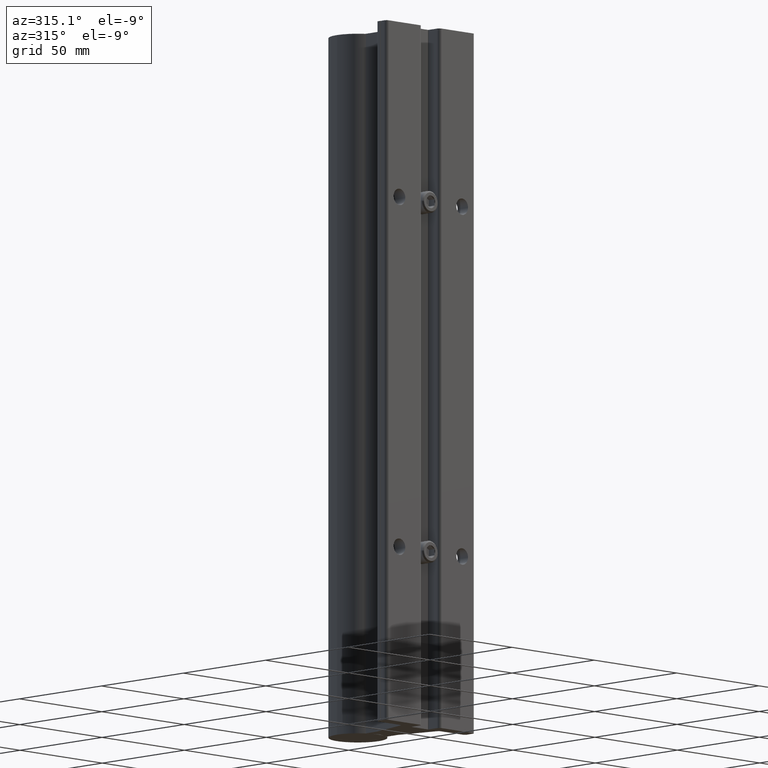
[diagram: clean part render]
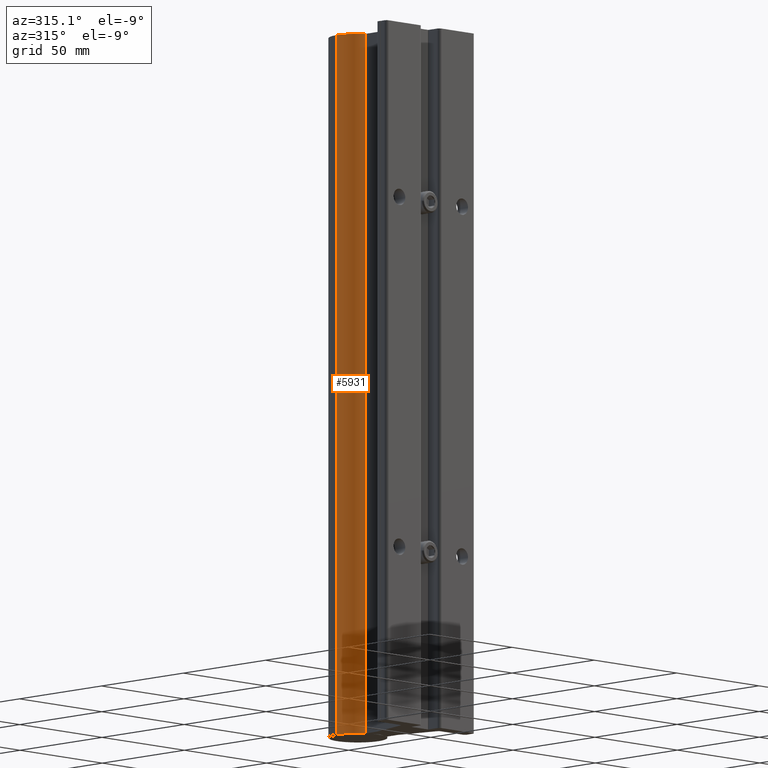
[diagram: same view with one face highlighted and labeled with its STEP entity id]
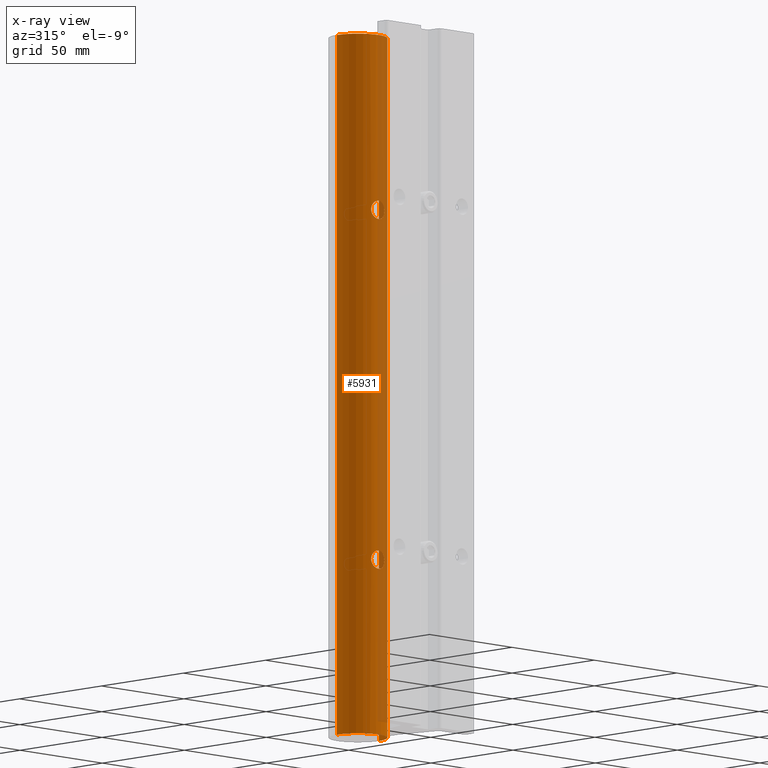
[diagram: x-ray of the same camera — body ghosted, the highlighted face saturated]
A machine part, auxiliary view. The second image highlights one B-rep face of the part: STEP entity #5931.
The next image is the same camera in x-ray: the body ghosted, the highlighted face saturated — about 19% of this face is hidden behind the body in this view.
In plain terms, the highlighted cylindrical surface (edge-blend (fillet) strip) has radius 12.7 mm, axis along (0, 0, 1).
Its self-contained STEP definition (entity closure, byte-faithful):
#21 = VERTEX_POINT ( 'NONE', #3940 ) ;
#32 = AXIS2_PLACEMENT_3D ( 'NONE', #1918, #3806, #4218 ) ;
#53 = CARTESIAN_POINT ( 'NONE',  ( 0.1178679316663036047, 1.264035795095121539, -3.103451840684775753 ) ) ;
#75 = CARTESIAN_POINT ( 'NONE',  ( 0.09554229024632142353, 1.259137792854418736, -9.124369988947355736 ) ) ;
#100 = CARTESIAN_POINT ( 'NONE',  ( 0.1243211416543388154, 1.265666113831307893, -9.095614294644716935 ) ) ;
#103 = CARTESIAN_POINT ( 'NONE',  ( 0.01040809537437401879, 1.250000000000000000, -3.156499999999999417 ) ) ;
#123 = EDGE_CURVE ( 'NONE', #2184, #2625, #5682, .T. ) ;
#139 = CARTESIAN_POINT ( 'NONE',  ( 0.09554229024632135414, 1.259137792854418958, -3.124369988947353960 ) ) ;
#180 = CARTESIAN_POINT ( 'NONE',  ( 0.1484607547724582644, 1.272531118639973702, -2.949422464750743433 ) ) ;
#182 = CARTESIAN_POINT ( 'NONE',  ( -0.01025724752596621561, 1.249999999999999778, -2.843499999999999694 ) ) ;
#242 = EDGE_CURVE ( 'NONE', #2625, #2184, #4504, .T. ) ;
#245 = CARTESIAN_POINT ( 'NONE',  ( -0.05070669661409946821, 1.252486482524820977, -3.148412155886937569 ) ) ;
#273 = CARTESIAN_POINT ( 'NONE',  ( -0.05070669661409964168, 1.252486482524820754, -9.148412155886937569 ) ) ;
#280 = CARTESIAN_POINT ( 'NONE',  ( -0.06949739479790265073, 1.254762348453770437, -2.859406111006373319 ) ) ;
#281 = CARTESIAN_POINT ( 'NONE',  ( 2.101067853136701108E-15, 1.249999999999999778, -2.843499999999999694 ) ) ;
#295 = CARTESIAN_POINT ( 'NONE',  ( -0.09556328476573595909, 1.259141713243884686, -9.124354827726028461 ) ) ;
#303 = CARTESIAN_POINT ( 'NONE',  ( -0.05063820119978774958, 1.252480159217775446, -2.851567179891719039 ) ) ;
#392 = CARTESIAN_POINT ( 'NONE',  ( -0.06963320848488399606, 1.254780770336873408, -9.140529546262069260 ) ) ;
#407 = DIRECTION ( 'NONE',  ( 0.000000000000000000, 0.000000000000000000, 1.000000000000000000 ) ) ;
#434 = ORIENTED_EDGE ( 'NONE', *, *, #3449, .T. ) ;
#463 = CARTESIAN_POINT ( 'NONE',  ( 0.05065284700690678849, 1.252481518235631697, -8.851571626508986768 ) ) ;
#486 = CARTESIAN_POINT ( 'NONE',  ( 0.06964398895624222818, 1.254782635874227781, -9.140522836123970762 ) ) ;
#580 = CARTESIAN_POINT ( 'NONE',  ( -2.094411209430302873E-16, 1.250000000000000000, -9.156499999999999417 ) ) ;
#659 = CARTESIAN_POINT ( 'NONE',  ( -0.1178406157585082242, 1.264028440204093995, -2.896511160095683213 ) ) ;
#681 = CARTESIAN_POINT ( 'NONE',  ( 0.1564999516228308130, 1.275123421148132152, -2.989685541178743744 ) ) ;
#713 = CARTESIAN_POINT ( 'NONE',  ( -0.06963320848488384340, 1.254780770336873186, -3.140529546262071037 ) ) ;
#717 = EDGE_CURVE ( 'NONE', #3644, #3308, #1816, .T. ) ;
#734 = CARTESIAN_POINT ( 'NONE',  ( -0.1405791870913263575, 1.270151909297080550, -9.069522938698744596 ) ) ;
#747 = CARTESIAN_POINT ( 'NONE',  ( -0.07866204735017155725, 1.256151829709960754, -2.864323441777054224 ) ) ;
#767 = CARTESIAN_POINT ( 'NONE',  ( 2.101067853164528571E-15, 1.249999999999999778, -8.843499999999998806 ) ) ;
#825 = CARTESIAN_POINT ( 'NONE',  ( 0.1484198940517172105, 1.272518801255798415, -3.050674901167630182 ) ) ;
#845 = VERTEX_POINT ( 'NONE', #4101 ) ;
#964 = ORIENTED_EDGE ( 'NONE', *, *, #5464, .F. ) ;
#991 = CARTESIAN_POINT ( 'NONE',  ( 0.07868335296973141824, 1.256155164790862200, -8.864335404507160732 ) ) ;
#1102 = CARTESIAN_POINT ( 'NONE',  ( 0.01025452552329446029, 1.250000000000000000, -2.843499999999999694 ) ) ;
#1105 = CARTESIAN_POINT ( 'NONE',  ( -0.1357655045532588922, 1.268748703922866650, -3.078521736294910660 ) ) ;
#1117 = DIRECTION ( 'NONE',  ( 1.000000000000000000, 0.000000000000000000, 0.000000000000000000 ) ) ;
#1165 = CARTESIAN_POINT ( 'NONE',  ( 2.101067853136701108E-15, 1.249999999999999778, -2.843499999999999694 ) ) ;
#1170 = DIRECTION ( 'NONE',  ( 0.000000000000000000, 0.000000000000000000, 1.000000000000000000 ) ) ;
#1179 = DIRECTION ( 'NONE',  ( 0.000000000000000000, 0.000000000000000000, 1.000000000000000000 ) ) ;
#1199 = CARTESIAN_POINT ( 'NONE',  ( -0.09557294541033024837, 1.259144068898282232, -2.875655083537207002 ) ) ;
#1216 = CARTESIAN_POINT ( 'NONE',  ( -0.1484625484838919263, 1.272531726863998180, -8.949430081437837359 ) ) ;
#1250 = CARTESIAN_POINT ( 'NONE',  ( -0.1178737392740396434, 1.264037250430759096, -9.103444881357880547 ) ) ;
#1347 = CARTESIAN_POINT ( 'NONE',  ( -0.09557294541033013735, 1.259144068898282232, -8.875655083537205670 ) ) ;
#1440 = CARTESIAN_POINT ( 'NONE',  ( 0.1564999516228307852, 1.275123421148132596, -8.989685541178742412 ) ) ;
#1491 = CARTESIAN_POINT ( 'NONE',  ( 0.04076219009262815191, 1.251562410105868883, -9.151446191407679009 ) ) ;
#1496 = CARTESIAN_POINT ( 'NONE',  ( 0.05075370098592688756, 1.252491623421628786, -3.148394792719597657 ) ) ;
#1524 = CARTESIAN_POINT ( 'NONE',  ( 0.02055646357326389173, 1.250319155074914645, -8.844510654310177244 ) ) ;
#1549 = DIRECTION ( 'NONE',  ( 0.000000000000000000, 0.000000000000000000, 1.000000000000000000 ) ) ;
#1592 = CARTESIAN_POINT ( 'NONE',  ( 0.1244033045994822895, 1.265688150019278035, -2.904506835837624035 ) ) ;
#1597 = CARTESIAN_POINT ( 'NONE',  ( -0.1405791870913261077, 1.270151909297080550, -3.069522938698746373 ) ) ;
#1636 = CARTESIAN_POINT ( 'NONE',  ( 0.1178830997218137805, 1.264038663556757758, -2.896558514937383144 ) ) ;
#1640 = CARTESIAN_POINT ( 'NONE',  ( -0.09556328476573582031, 1.259141713243884686, -3.124354827726028017 ) ) ;
#1645 = LINE ( 'NONE', #2084, #3584 ) ;
#1654 = EDGE_CURVE ( 'NONE', #6015, #5841, #2093, .T. ) ;
#1672 = CARTESIAN_POINT ( 'NONE',  ( -0.1035399364845304288, 1.260782774289252561, -3.117790251898744813 ) ) ;
#1685 = CARTESIAN_POINT ( 'NONE',  ( -0.1034063837601280900, 1.260753755813636134, -8.882087021474569966 ) ) ;
#1777 = EDGE_LOOP ( 'NONE', ( #5992, #3867, #4335, #964 ) ) ;
#1783 = CARTESIAN_POINT ( 'NONE',  ( -2.094411209430302873E-16, 1.250000000000000000, -9.156499999999999417 ) ) ;
#1816 = B_SPLINE_CURVE_WITH_KNOTS ( 'NONE', 3,
 ( #3733, #1874, #1524, #2414, #463, #5112, #991, #2806, #2324, #2774, #5692, #4199, #4310, #4668, #2854, #1926, #1440, #5730, #4287, #5607, #6074, #3332, #4751, #100, #3274, #4696, #75, #1948, #486, #2344, #1491, #3362, #5236, #580 ),
 .UNSPECIFIED., .F., .F.,
 ( 4, 2, 2, 2, 2, 2, 2, 2, 2, 2, 2, 2, 2, 2, 2, 2, 4 ),
 ( 0.01250706719454411538, 0.01328855145386468109, 0.01407003571318524854, 0.01485151997250581425, 0.01563300423182637996, 0.01641448849114694741, 0.01719597275046751139, 0.01797745700978807884, 0.01875894126910864282, 0.01954042552842921027, 0.02032190978774977425, 0.02110339404707034516, 0.02188487830639090914, 0.02266636256571147312, 0.02344784682503204057, 0.02422933108435260802, 0.02501081534367317200 ),
 .UNSPECIFIED. ) ;
#1874 = CARTESIAN_POINT ( 'NONE',  ( 0.01025452552329443774, 1.250000000000000222, -8.843499999999998806 ) ) ;
#1899 = CARTESIAN_POINT ( 'NONE',  ( 0.04076219009262842252, 1.251562410105868883, -3.151446191407679898 ) ) ;
#1918 = CARTESIAN_POINT ( 'NONE',  ( 0.000000000000000000, 1.750000000000000000, -11.99999999999999822 ) ) ;
#1926 = CARTESIAN_POINT ( 'NONE',  ( 0.1554580701843658597, 1.274776625798299312, -8.979269538820252805 ) ) ;
#1948 = CARTESIAN_POINT ( 'NONE',  ( 0.07859642925546561631, 1.256141075875271351, -9.135715970631931526 ) ) ;
#1953 = CARTESIAN_POINT ( 'NONE',  ( 0.06964398895624185348, 1.254782635874228225, -3.140522836123970762 ) ) ;
#1984 = CARTESIAN_POINT ( 'NONE',  ( -8.196081754135579170E-17, 1.250000000000000000, -3.156499999999999417 ) ) ;
#2010 = ORIENTED_EDGE ( 'NONE', *, *, #123, .T. ) ;
#2052 = CARTESIAN_POINT ( 'NONE',  ( -0.1034063837601284508, 1.260753755813636134, -2.882087021474569521 ) ) ;
#2084 = CARTESIAN_POINT ( 'NONE',  ( 0.5000000000000000000, 1.750000000000000000, -11.99999999999999822 ) ) ;
#2093 = LINE ( 'NONE', #3444, #5810 ) ;
#2121 = CARTESIAN_POINT ( 'NONE',  ( -0.1484031328809074790, 1.272513656587303865, -3.050719394709512589 ) ) ;
#2141 = CARTESIAN_POINT ( 'NONE',  ( -0.1565048378191059575, 1.275125031439485079, -8.989792767501070259 ) ) ;
#2175 = CARTESIAN_POINT ( 'NONE',  ( 2.101067853136701108E-15, 1.249999999999999778, -2.843499999999999694 ) ) ;
#2184 = VERTEX_POINT ( 'NONE', #281 ) ;
#2194 = CARTESIAN_POINT ( 'NONE',  ( -0.07859880021001160177, 1.256141287737158052, -9.135715486144853514 ) ) ;
#2229 = CARTESIAN_POINT ( 'NONE',  ( 0.07868335296973177906, 1.256155164790861978, -2.864335404507161176 ) ) ;
#2230 = CARTESIAN_POINT ( 'NONE',  ( -0.07866204735017148786, 1.256151829709960754, -8.864323441777052892 ) ) ;
#2324 = CARTESIAN_POINT ( 'NONE',  ( 0.1034388360803587259, 1.260760536231932072, -8.882114575869943351 ) ) ;
#2344 = CARTESIAN_POINT ( 'NONE',  ( 0.05075370098592723450, 1.252491623421629230, -9.148394792719598101 ) ) ;
#2414 = CARTESIAN_POINT ( 'NONE',  ( 0.04086650447296577560, 1.251569018025717517, -8.848575320274898459 ) ) ;
#2457 = AXIS2_PLACEMENT_3D ( 'NONE', #3516, #1179, #1117 ) ;
#2514 = CARTESIAN_POINT ( 'NONE',  ( -0.02063932115101497697, 1.250323351658012339, -2.844524195707542003 ) ) ;
#2585 = CARTESIAN_POINT ( 'NONE',  ( -0.1514432164739248077, 1.273481935867222692, -9.040787736699337884 ) ) ;
#2598 = CARTESIAN_POINT ( 'NONE',  ( -0.01041085814125160269, 1.249999999999999778, -3.156499999999998973 ) ) ;
#2625 = VERTEX_POINT ( 'NONE', #2885 ) ;
#2628 = CARTESIAN_POINT ( 'NONE',  ( -0.02063512757121529345, 1.250324585779543529, -3.155471615359788373 ) ) ;
#2647 = CARTESIAN_POINT ( 'NONE',  ( -0.1514414893444177290, 1.273481421671772917, -8.959219246323204544 ) ) ;
#2759 = EDGE_LOOP ( 'NONE', ( #3908, #2010 ) ) ;
#2774 = CARTESIAN_POINT ( 'NONE',  ( 0.1178830997218135168, 1.264038663556757092, -8.896558514937384032 ) ) ;
#2806 = CARTESIAN_POINT ( 'NONE',  ( 0.09560078652235397267, 1.259149431177259748, -8.875676059742689361 ) ) ;
#2854 = CARTESIAN_POINT ( 'NONE',  ( 0.1514350073922274831, 1.273479375567842187, -8.959202915027070446 ) ) ;
#2885 = CARTESIAN_POINT ( 'NONE',  ( -8.196081754135579170E-17, 1.250000000000000000, -3.156499999999999417 ) ) ;
#2929 = CARTESIAN_POINT ( 'NONE',  ( 0.04086650447296554661, 1.251569018025717961, -2.848575320274898459 ) ) ;
#2931 = CARTESIAN_POINT ( 'NONE',  ( 0.1243211416543387599, 1.265666113831308115, -3.095614294644717379 ) ) ;
#2968 = CARTESIAN_POINT ( 'NONE',  ( 0.1356887000389168374, 1.268728011506206732, -2.921363473634938757 ) ) ;
#2973 = CARTESIAN_POINT ( 'NONE',  ( -0.1554870185490531131, 1.274786047844190362, -3.020554180687853751 ) ) ;
#3029 = CARTESIAN_POINT ( 'NONE',  ( 0.1034388360803589341, 1.260760536231932516, -2.882114575869943796 ) ) ;
#3045 = CIRCLE ( 'NONE', #2457, 0.5000000000000000000 ) ;
#3051 = EDGE_CURVE ( 'NONE', #845, #21, #1645, .T. ) ;
#3063 = CARTESIAN_POINT ( 'NONE',  ( 0.1405366595157273302, 1.270139003765712316, -2.930371484924218617 ) ) ;
#3070 = CARTESIAN_POINT ( 'NONE',  ( -0.04072955494209257177, 1.251560002186336895, -3.151454069033095440 ) ) ;
#3086 = CARTESIAN_POINT ( 'NONE',  ( -0.01025724752596621041, 1.249999999999999778, -8.843499999999997030 ) ) ;
#3103 = CARTESIAN_POINT ( 'NONE',  ( -0.1565048378191059575, 1.275125031439485523, -2.989792767501073367 ) ) ;
#3118 = FACE_BOUND ( 'NONE', #4170, .T. ) ;
#3121 = CARTESIAN_POINT ( 'NONE',  ( -0.1564951272782237335, 1.275121831240573211, -9.010355046800681222 ) ) ;
#3147 = CARTESIAN_POINT ( 'NONE',  ( -0.1405496522177391017, 1.270142859368248445, -8.930399423657641833 ) ) ;
#3163 = CARTESIAN_POINT ( 'NONE',  ( 2.101067853164528571E-15, 1.249999999999999778, -8.843499999999998806 ) ) ;
#3181 = CARTESIAN_POINT ( 'NONE',  ( -0.1178406157585078773, 1.264028440204093995, -8.896511160095682769 ) ) ;
#3274 = CARTESIAN_POINT ( 'NONE',  ( 0.1178679316663040350, 1.264035795095121539, -9.103451840684776641 ) ) ;
#3308 = VERTEX_POINT ( 'NONE', #4019 ) ;
#3332 = CARTESIAN_POINT ( 'NONE',  ( 0.1405814577952108346, 1.270152509823490261, -9.069521682105984084 ) ) ;
#3362 = CARTESIAN_POINT ( 'NONE',  ( 0.02064213769754179653, 1.250324616063695382, -9.155471563909012289 ) ) ;
#3431 = CARTESIAN_POINT ( 'NONE',  ( 0.06952565123151821513, 1.254766182063603130, -2.859419500684037274 ) ) ;
#3434 = CARTESIAN_POINT ( 'NONE',  ( -0.07859880021001150463, 1.256141287737158052, -3.135715486144853514 ) ) ;
#3444 = CARTESIAN_POINT ( 'NONE',  ( -0.5000000000000000000, 1.750000000000000000, -11.99999999999999822 ) ) ;
#3449 = EDGE_CURVE ( 'NONE', #3308, #3644, #4131, .T. ) ;
#3467 = CARTESIAN_POINT ( 'NONE',  ( -0.1405496522177394347, 1.270142859368248889, -2.930399423657641833 ) ) ;
#3502 = CARTESIAN_POINT ( 'NONE',  ( 0.1514646482530661031, 1.273488789680646605, -3.040701736055423599 ) ) ;
#3516 = CARTESIAN_POINT ( 'NONE',  ( 0.000000000000000000, 1.750000000000000000, -11.99999999999999822 ) ) ;
#3536 = CARTESIAN_POINT ( 'NONE',  ( -0.1178737392740400181, 1.264037250430759096, -3.103444881357880991 ) ) ;
#3550 = CARTESIAN_POINT ( 'NONE',  ( -0.05063820119978776346, 1.252480159217775668, -8.851567179891718595 ) ) ;
#3566 = CARTESIAN_POINT ( 'NONE',  ( -8.196081754135579170E-17, 1.250000000000000000, -3.156499999999999417 ) ) ;
#3584 = VECTOR ( 'NONE', #1170, 39.37007874015748143 ) ;
#3585 = CARTESIAN_POINT ( 'NONE',  ( -0.1554704722570755260, 1.274780669119014442, -8.979347474211012425 ) ) ;
#3615 = CARTESIAN_POINT ( 'NONE',  ( -0.1243271559051704334, 1.265667634256130603, -9.095606974650911170 ) ) ;
#3626 = DIRECTION ( 'NONE',  ( 1.000000000000000000, 0.000000000000000000, 0.000000000000000000 ) ) ;
#3644 = VERTEX_POINT ( 'NONE', #3163 ) ;
#3674 = CARTESIAN_POINT ( 'NONE',  ( -0.1035399364845299847, 1.260782774289252561, -9.117790251898744813 ) ) ;
#3733 = CARTESIAN_POINT ( 'NONE',  ( 2.101067853164528571E-15, 1.249999999999999778, -8.843499999999998806 ) ) ;
#3806 = DIRECTION ( 'NONE',  ( 0.000000000000000000, 0.000000000000000000, 1.000000000000000000 ) ) ;
#3867 = ORIENTED_EDGE ( 'NONE', *, *, #4890, .T. ) ;
#3908 = ORIENTED_EDGE ( 'NONE', *, *, #242, .T. ) ;
#3940 = CARTESIAN_POINT ( 'NONE',  ( 0.5000000000000000000, 1.750000000000000000, 0.000000000000000000 ) ) ;
#3997 = CARTESIAN_POINT ( 'NONE',  ( -0.1554704722570754982, 1.274780669119014220, -2.979347474211013314 ) ) ;
#4013 = CARTESIAN_POINT ( 'NONE',  ( -0.06949739479790262298, 1.254762348453770437, -8.859406111006373763 ) ) ;
#4019 = CARTESIAN_POINT ( 'NONE',  ( -2.094411209430302873E-16, 1.250000000000000000, -9.156499999999999417 ) ) ;
#4034 = FACE_OUTER_BOUND ( 'NONE', #1777, .T. ) ;
#4101 = CARTESIAN_POINT ( 'NONE',  ( 0.5000000000000000000, 1.750000000000000000, -11.99999999999999822 ) ) ;
#4105 = CARTESIAN_POINT ( 'NONE',  ( 0.1405814577952105016, 1.270152509823489595, -3.069521682105984084 ) ) ;
#4131 = B_SPLINE_CURVE_WITH_KNOTS ( 'NONE', 3,
 ( #1783, #4530, #4604, #5961, #273, #392, #2194, #295, #3674, #1250, #3615, #5895, #734, #5480, #2585, #4474, #3121, #2141, #3585, #2647, #1216, #3147, #5544, #4989, #3181, #1685, #1347, #2230, #4013, #3550, #5019, #4960, #3086, #767 ),
 .UNSPECIFIED., .F., .F.,
 ( 4, 2, 2, 2, 2, 2, 2, 2, 2, 2, 2, 2, 2, 2, 2, 2, 4 ),
 ( 5.165158712213689538E-18, 0.0007816916996590120899, 0.001563383399318018976, 0.002345075098977025645, 0.003126766798636032747, 0.003908458498295039850, 0.004690150197954046085, 0.005471841897613053188, 0.006253533597272060290, 0.007035225296931067393, 0.007816916996590074496, 0.008598608696249081598, 0.009380300395908086966, 0.01016199209556709407, 0.01094368379522610117, 0.01172537549488510827, 0.01250706719454411538 ),
 .UNSPECIFIED. ) ;
#4170 = EDGE_LOOP ( 'NONE', ( #434, #4225 ) ) ;
#4199 = CARTESIAN_POINT ( 'NONE',  ( 0.1356887000389168374, 1.268728011506206732, -8.921363473634940533 ) ) ;
#4218 = DIRECTION ( 'NONE',  ( 1.000000000000000000, 0.000000000000000000, 0.000000000000000000 ) ) ;
#4225 = ORIENTED_EDGE ( 'NONE', *, *, #717, .T. ) ;
#4287 = CARTESIAN_POINT ( 'NONE',  ( 0.1554904432202414699, 1.274787210507111190, -9.020515678285725869 ) ) ;
#4310 = CARTESIAN_POINT ( 'NONE',  ( 0.1405366595157273024, 1.270139003765712316, -8.930371484924217285 ) ) ;
#4335 = ORIENTED_EDGE ( 'NONE', *, *, #3051, .T. ) ;
#4352 = CARTESIAN_POINT ( 'NONE',  ( 0.02055646357326355519, 1.250319155074914645, -2.844510654310176356 ) ) ;
#4389 = CARTESIAN_POINT ( 'NONE',  ( -0.04087253725953278460, 1.251570295654617748, -2.848579581971487862 ) ) ;
#4416 = CARTESIAN_POINT ( 'NONE',  ( 0.1554904432202416642, 1.274787210507110524, -3.020515678285723205 ) ) ;
#4474 = CARTESIAN_POINT ( 'NONE',  ( -0.1554870185490531131, 1.274786047844190362, -9.020554180687852863 ) ) ;
#4486 = CARTESIAN_POINT ( 'NONE',  ( -0.1243799828838284688, 1.265682033343106694, -2.904474761618458079 ) ) ;
#4504 = B_SPLINE_CURVE_WITH_KNOTS ( 'NONE', 3,
 ( #3566, #2598, #2628, #3070, #245, #713, #3434, #1640, #1672, #3536, #5376, #1105, #1597, #2121, #4940, #2973, #4856, #3103, #3997, #5403, #4511, #3467, #5878, #4486, #659, #2052, #1199, #747, #280, #303, #4389, #2514, #182, #2175 ),
 .UNSPECIFIED., .F., .F.,
 ( 4, 2, 2, 2, 2, 2, 2, 2, 2, 2, 2, 2, 2, 2, 2, 2, 4 ),
 ( 2.021287075230293743E-18, 0.0007816916996590075363, 0.001563383399318012904, 0.002345075098977018706, 0.003126766798636024074, 0.003908458498295029442, 0.004690150197954034809, 0.005471841897613040177, 0.006253533597272045545, 0.007035225296931050913, 0.007816916996590057148, 0.008598608696249062516, 0.009380300395908067884, 0.01016199209556707325, 0.01094368379522607862, 0.01172537549488508399, 0.01250706719454408936 ),
 .UNSPECIFIED. ) ;
#4511 = CARTESIAN_POINT ( 'NONE',  ( -0.1484625484838921483, 1.272531726863997514, -2.949430081437836915 ) ) ;
#4530 = CARTESIAN_POINT ( 'NONE',  ( -0.01041085814125164259, 1.249999999999999778, -9.156499999999999417 ) ) ;
#4604 = CARTESIAN_POINT ( 'NONE',  ( -0.02063512757121541835, 1.250324585779543529, -9.155471615359788373 ) ) ;
#4668 = CARTESIAN_POINT ( 'NONE',  ( 0.1484607547724582644, 1.272531118639973702, -8.949422464750744766 ) ) ;
#4696 = CARTESIAN_POINT ( 'NONE',  ( 0.1035280489591258318, 1.260780212130743205, -9.117801000569084380 ) ) ;
#4751 = CARTESIAN_POINT ( 'NONE',  ( 0.1357558474040492513, 1.268746003186348670, -9.078537822087536568 ) ) ;
#4785 = CARTESIAN_POINT ( 'NONE',  ( 0.1035280489591252906, 1.260780212130743649, -3.117801000569084824 ) ) ;
#4831 = AXIS2_PLACEMENT_3D ( 'NONE', #5069, #407, #3626 ) ;
#4856 = CARTESIAN_POINT ( 'NONE',  ( -0.1564951272782237335, 1.275121831240573211, -3.010355046800683887 ) ) ;
#4865 = CARTESIAN_POINT ( 'NONE',  ( -0.5000000000000000000, 1.750000000000000000, -11.99999999999999822 ) ) ;
#4890 = EDGE_CURVE ( 'NONE', #6015, #845, #3045, .T. ) ;
#4905 = CARTESIAN_POINT ( 'NONE',  ( 0.1565000483737302439, 1.275123453033293330, -3.010312990727420424 ) ) ;
#4940 = CARTESIAN_POINT ( 'NONE',  ( -0.1514432164739248077, 1.273481935867222692, -3.040787736699337440 ) ) ;
#4960 = CARTESIAN_POINT ( 'NONE',  ( -0.02063932115101512615, 1.250323351658012783, -8.844524195707544223 ) ) ;
#4989 = CARTESIAN_POINT ( 'NONE',  ( -0.1243799828838284272, 1.265682033343106694, -8.904474761618457634 ) ) ;
#5019 = CARTESIAN_POINT ( 'NONE',  ( -0.04087253725953288175, 1.251570295654617748, -8.848579581971485197 ) ) ;
#5069 = CARTESIAN_POINT ( 'NONE',  ( 0.000000000000000000, 1.750000000000000000, 0.000000000000000000 ) ) ;
#5080 = CYLINDRICAL_SURFACE ( 'NONE', #32, 0.5000000000000000000 ) ;
#5112 = CARTESIAN_POINT ( 'NONE',  ( 0.06952565123151799309, 1.254766182063602908, -8.859419500684031945 ) ) ;
#5236 = CARTESIAN_POINT ( 'NONE',  ( 0.01040809537437410379, 1.250000000000000222, -9.156499999999999417 ) ) ;
#5299 = CARTESIAN_POINT ( 'NONE',  ( 0.02064213769754214348, 1.250324616063695160, -3.155471563909014066 ) ) ;
#5305 = CARTESIAN_POINT ( 'NONE',  ( 0.09560078652235430574, 1.259149431177260192, -2.875676059742692914 ) ) ;
#5327 = CARTESIAN_POINT ( 'NONE',  ( -0.5000000000000000000, 1.750000000000000000, 0.000000000000000000 ) ) ;
#5340 = CARTESIAN_POINT ( 'NONE',  ( 0.1554580701843656376, 1.274776625798298646, -2.979269538820249696 ) ) ;
#5373 = CARTESIAN_POINT ( 'NONE',  ( 0.1357558474040492513, 1.268746003186348892, -3.078537822087537457 ) ) ;
#5376 = CARTESIAN_POINT ( 'NONE',  ( -0.1243271559051700725, 1.265667634256130603, -3.095606974650912058 ) ) ;
#5399 = CARTESIAN_POINT ( 'NONE',  ( 0.05065284700690694808, 1.252481518235632141, -2.851571626508989876 ) ) ;
#5403 = CARTESIAN_POINT ( 'NONE',  ( -0.1514414893444176735, 1.273481421671772917, -2.959219246323203656 ) ) ;
#5449 = FACE_BOUND ( 'NONE', #2759, .T. ) ;
#5464 = EDGE_CURVE ( 'NONE', #5841, #21, #5619, .T. ) ;
#5480 = CARTESIAN_POINT ( 'NONE',  ( -0.1484031328809076733, 1.272513656587303865, -9.050719394709512144 ) ) ;
#5544 = CARTESIAN_POINT ( 'NONE',  ( -0.1356857239005710980, 1.268727044912736801, -8.921356273997158581 ) ) ;
#5607 = CARTESIAN_POINT ( 'NONE',  ( 0.1514646482530656868, 1.273488789680645938, -9.040701736055424931 ) ) ;
#5619 = CIRCLE ( 'NONE', #4831, 0.5000000000000000000 ) ;
#5682 = B_SPLINE_CURVE_WITH_KNOTS ( 'NONE', 3,
 ( #1165, #1102, #4352, #2929, #5399, #3431, #2229, #5305, #3029, #1636, #1592, #2968, #3063, #180, #5803, #5340, #681, #4905, #4416, #3502, #825, #4105, #5373, #2931, #53, #4785, #139, #5770, #1953, #1496, #1899, #5299, #103, #1984 ),
 .UNSPECIFIED., .F., .F.,
 ( 4, 2, 2, 2, 2, 2, 2, 2, 2, 2, 2, 2, 2, 2, 2, 2, 4 ),
 ( 0.01250706719454408936, 0.01328855145386465333, 0.01407003571318521731, 0.01485151997250578303, 0.01563300423182634874, 0.01641448849114691272, 0.01719597275046747670, 0.01797745700978804068, 0.01875894126910860465, 0.01954042552842916863, 0.02032190978774973261, 0.02110339404707029659, 0.02188487830639086057, 0.02266636256571142455, 0.02344784682503198853, 0.02422933108435255251, 0.02501081534367311648 ),
 .UNSPECIFIED. ) ;
#5692 = CARTESIAN_POINT ( 'NONE',  ( 0.1244033045994823311, 1.265688150019278257, -8.904506835837624479 ) ) ;
#5730 = CARTESIAN_POINT ( 'NONE',  ( 0.1565000483737302994, 1.275123453033293330, -9.010312990727419091 ) ) ;
#5770 = CARTESIAN_POINT ( 'NONE',  ( 0.07859642925546557468, 1.256141075875272017, -3.135715970631933303 ) ) ;
#5803 = CARTESIAN_POINT ( 'NONE',  ( 0.1514350073922271500, 1.273479375567841965, -2.959202915027071779 ) ) ;
#5810 = VECTOR ( 'NONE', #1549, 39.37007874015748143 ) ;
#5841 = VERTEX_POINT ( 'NONE', #5327 ) ;
#5878 = CARTESIAN_POINT ( 'NONE',  ( -0.1356857239005710980, 1.268727044912736579, -2.921356273997158137 ) ) ;
#5895 = CARTESIAN_POINT ( 'NONE',  ( -0.1357655045532591698, 1.268748703922866650, -9.078521736294911548 ) ) ;
#5931 = ADVANCED_FACE ( 'NONE', ( #4034, #5449, #3118 ), #5080, .T. ) ;
#5961 = CARTESIAN_POINT ( 'NONE',  ( -0.04072955494209273136, 1.251560002186336895, -9.151454069033093219 ) ) ;
#5992 = ORIENTED_EDGE ( 'NONE', *, *, #1654, .F. ) ;
#6015 = VERTEX_POINT ( 'NONE', #4865 ) ;
#6074 = CARTESIAN_POINT ( 'NONE',  ( 0.1484198940517174325, 1.272518801255799081, -9.050674901167628406 ) ) ;